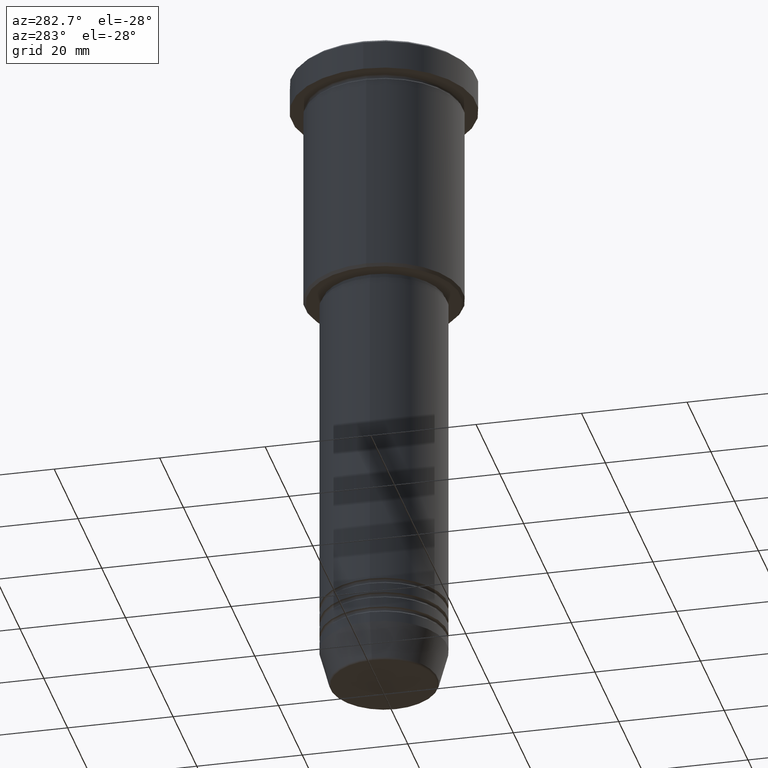
[diagram: clean part render]
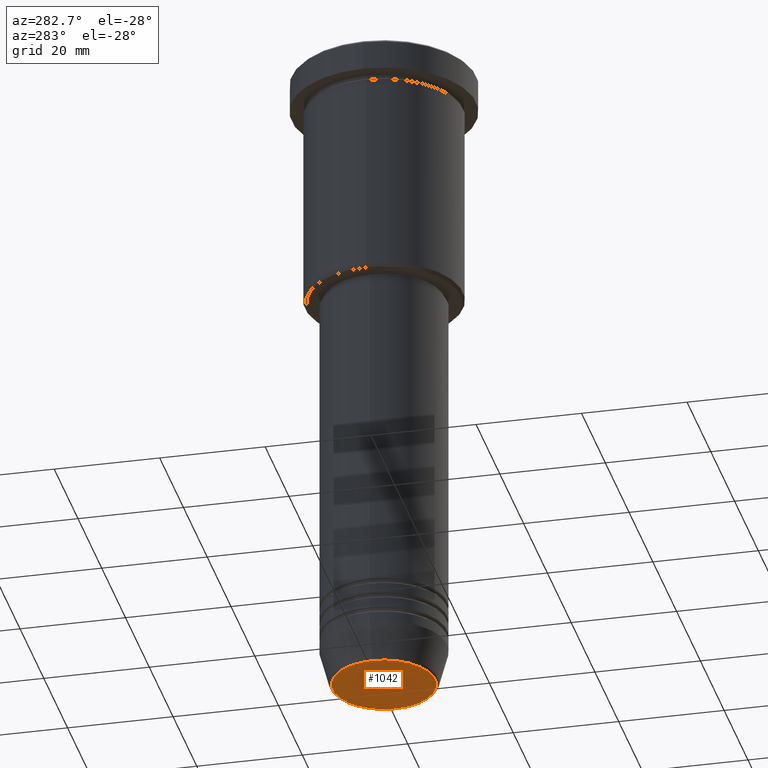
[diagram: same view with one face highlighted and labeled with its STEP entity id]
A machine part, auxiliary view. The second image highlights one B-rep face of the part: STEP entity #1042.
In plain terms, the highlighted planar face has unit normal (0, -0, 1).
Its self-contained STEP definition (entity closure, byte-faithful):
#1 = PLANE ( 'NONE',  #577 ) ;
#36 = VERTEX_POINT ( 'NONE', #746 ) ;
#59 = ORIENTED_EDGE ( 'NONE', *, *, #344, .T. ) ;
#79 = CARTESIAN_POINT ( 'NONE',  ( 0.000000000000000000, 0.000000000000000000, -126.0000000000000000 ) ) ;
#156 = DIRECTION ( 'NONE',  ( 0.000000000000000000, 0.000000000000000000, -1.000000000000000000 ) ) ;
#185 = DIRECTION ( 'NONE',  ( 1.000000000000000000, 0.000000000000000000, 0.000000000000000000 ) ) ;
#316 = EDGE_CURVE ( 'NONE', #546, #36, #570, .T. ) ;
#344 = EDGE_CURVE ( 'NONE', #36, #546, #408, .T. ) ;
#370 = DIRECTION ( 'NONE',  ( 0.000000000000000000, -0.000000000000000000, 1.000000000000000000 ) ) ;
#408 = CIRCLE ( 'NONE', #1121, 9.740692158992654726 ) ;
#546 = VERTEX_POINT ( 'NONE', #909 ) ;
#570 = CIRCLE ( 'NONE', #579, 9.740692158992654726 ) ;
#577 = AXIS2_PLACEMENT_3D ( 'NONE', #1080, #370, #185 ) ;
#579 = AXIS2_PLACEMENT_3D ( 'NONE', #609, #1145, #1054 ) ;
#609 = CARTESIAN_POINT ( 'NONE',  ( 0.000000000000000000, 0.000000000000000000, -126.0000000000000000 ) ) ;
#721 = FACE_OUTER_BOUND ( 'NONE', #927, .T. ) ;
#746 = CARTESIAN_POINT ( 'NONE',  ( 9.740692158992654726, 0.000000000000000000, -126.0000000000000000 ) ) ;
#878 = DIRECTION ( 'NONE',  ( 1.000000000000000000, 0.000000000000000000, 0.000000000000000000 ) ) ;
#909 = CARTESIAN_POINT ( 'NONE',  ( -9.740692158992654726, 1.222463696683474604E-15, -126.0000000000000000 ) ) ;
#927 = EDGE_LOOP ( 'NONE', ( #59, #1153 ) ) ;
#1042 = ADVANCED_FACE ( 'NONE', ( #721 ), #1, .F. ) ;
#1054 = DIRECTION ( 'NONE',  ( 1.000000000000000000, 0.000000000000000000, 0.000000000000000000 ) ) ;
#1080 = CARTESIAN_POINT ( 'NONE',  ( 0.000000000000000000, 0.000000000000000000, -126.0000000000000000 ) ) ;
#1121 = AXIS2_PLACEMENT_3D ( 'NONE', #79, #156, #878 ) ;
#1145 = DIRECTION ( 'NONE',  ( 0.000000000000000000, 0.000000000000000000, -1.000000000000000000 ) ) ;
#1153 = ORIENTED_EDGE ( 'NONE', *, *, #316, .T. ) ;